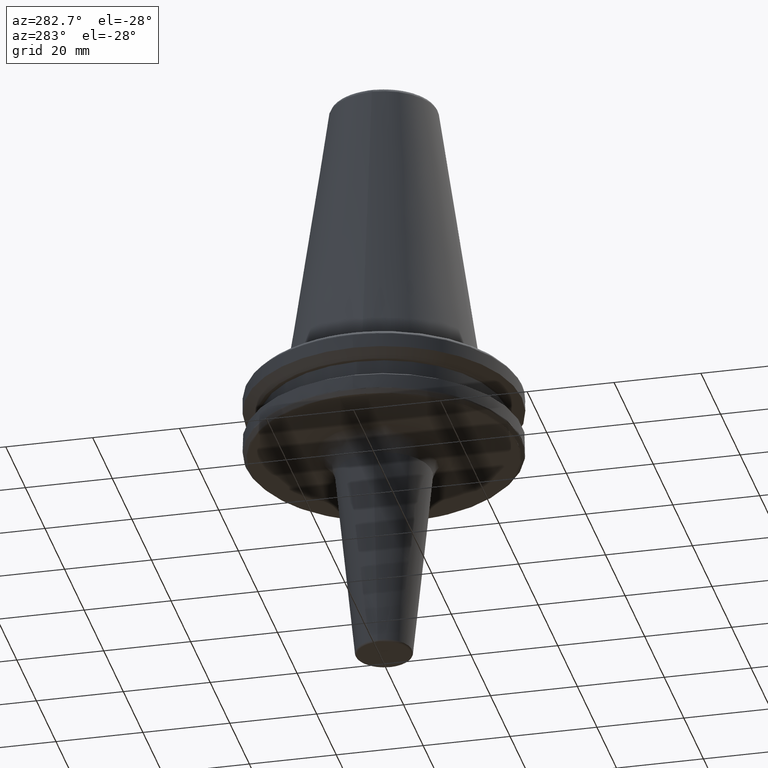
[diagram: clean part render]
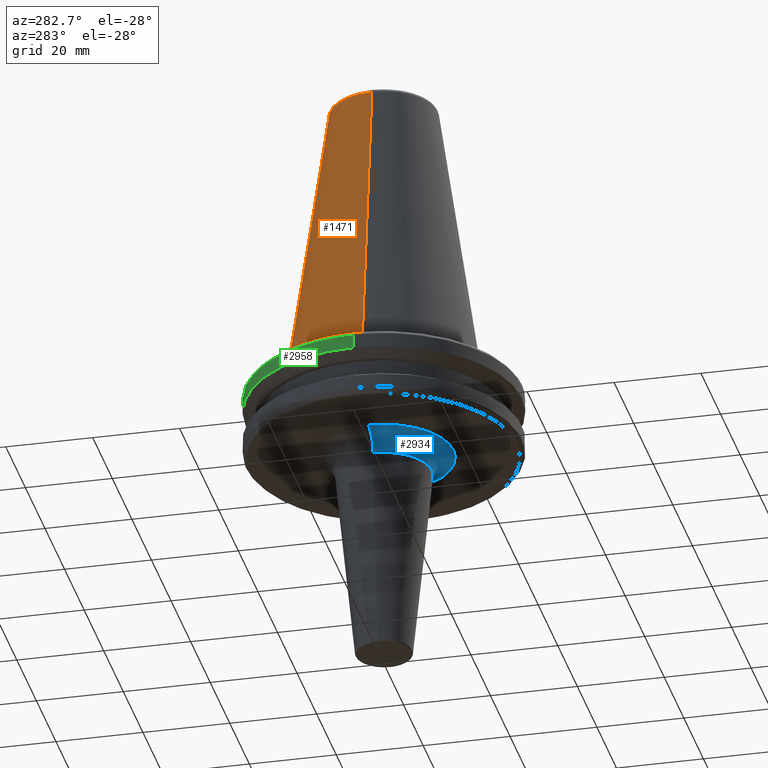
[diagram: same view with three faces highlighted in distinct colors, each labeled with its STEP entity id]
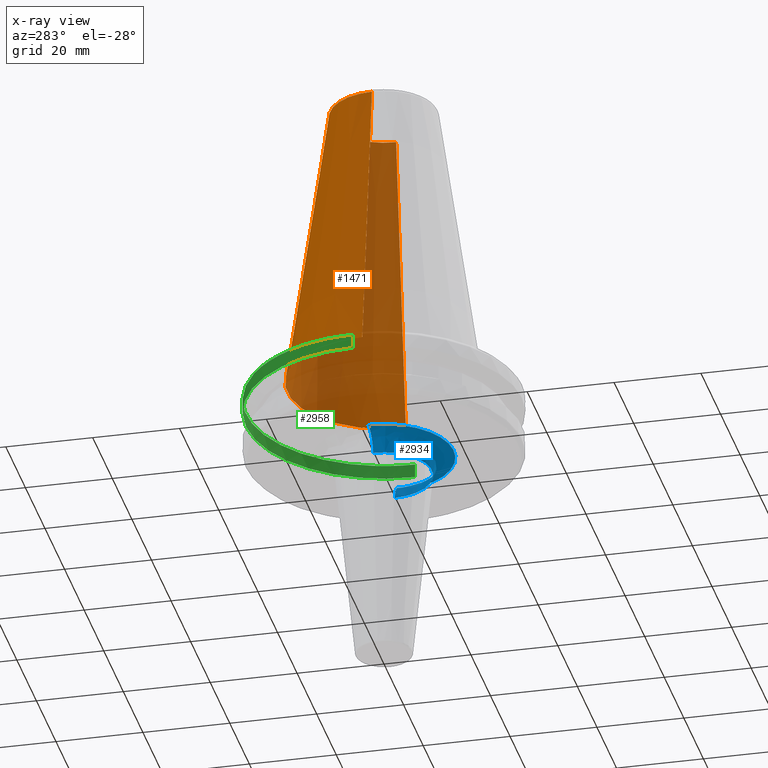
[diagram: x-ray of the same camera — body ghosted, the three highlighted faces saturated]
A machine part, auxiliary view with three faces highlighted in distinct colors.
The next image is the same camera in x-ray (body ghosted, the three faces saturated) — at least one of them is partly hidden behind the body in this view.
Their STEP definitions:

[orange] entity #1471 — the highlighted conical surface has half-angle 8.297 deg.
#61 = CARTESIAN_POINT ( 'NONE',  ( 22.22500000000000500, 0.0000000000000000000, 0.0000000000000000000 ) ) ;
#160 = DIRECTION ( 'NONE',  ( -1.000000000000000000, 0.0000000000000000000, 6.244223985518314900E-016 ) ) ;
#173 = DIRECTION ( 'NONE',  ( -0.0000000000000000000, -0.0000000000000000000, 1.000000000000000000 ) ) ;
#266 = EDGE_CURVE ( 'NONE', #2598, #1013, #1277, .T. ) ;
#330 = DIRECTION ( 'NONE',  ( 0.0000000000000000000, 0.0000000000000000000, -1.000000000000000000 ) ) ;
#392 = FACE_OUTER_BOUND ( 'NONE', #2591, .T. ) ;
#398 = VERTEX_POINT ( 'NONE', #1950 ) ;
#409 = AXIS2_PLACEMENT_3D ( 'NONE', #1020, #173, #160 ) ;
#629 = CARTESIAN_POINT ( 'NONE',  ( -22.22500000000000100, 0.0000000000000000000, 0.0000000000000000000 ) ) ;
#668 = EDGE_CURVE ( 'NONE', #398, #2956, #803, .T. ) ;
#675 = CARTESIAN_POINT ( 'NONE',  ( 0.0000000000000000000, 0.0000000000000000000, 67.54430822726729400 ) ) ;
#692 = CARTESIAN_POINT ( 'NONE',  ( 22.22500000000000100, 2.721777511104992800E-015, 0.0000000000000000000 ) ) ;
#803 = LINE ( 'NONE', #629, #2384 ) ;
#959 = DIRECTION ( 'NONE',  ( -1.000000000000000000, 0.0000000000000000000, 0.0000000000000000000 ) ) ;
#1011 = CIRCLE ( 'NONE', #409, 22.22500000000000100 ) ;
#1013 = VERTEX_POINT ( 'NONE', #61 ) ;
#1020 = CARTESIAN_POINT ( 'NONE',  ( 0.0000000000000000000, 0.0000000000000000000, 0.0000000000000000000 ) ) ;
#1261 = DIRECTION ( 'NONE',  ( 0.1443082272673070500, 1.767266086135363700E-017, -0.9895327864921743500 ) ) ;
#1264 = CARTESIAN_POINT ( 'NONE',  ( 12.37469537611110800, 2.118620309691396900E-015, 67.54430822726729400 ) ) ;
#1277 = LINE ( 'NONE', #692, #2064 ) ;
#1461 = CIRCLE ( 'NONE', #1707, 12.37469537611110800 ) ;
#1471 = ADVANCED_FACE ( 'NONE', ( #392 ), #2439, .T. ) ;
#1524 = EDGE_CURVE ( 'NONE', #1013, #2956, #1011, .T. ) ;
#1528 = ORIENTED_EDGE ( 'NONE', *, *, #668, .F. ) ;
#1707 = AXIS2_PLACEMENT_3D ( 'NONE', #675, #2284, #959 ) ;
#1865 = DIRECTION ( 'NONE',  ( -0.1443082272673070500, 0.0000000000000000000, -0.9895327864921743500 ) ) ;
#1938 = ORIENTED_EDGE ( 'NONE', *, *, #2431, .T. ) ;
#1950 = CARTESIAN_POINT ( 'NONE',  ( -12.37469537611110800, 0.0000000000000000000, 67.54430822726729400 ) ) ;
#2064 = VECTOR ( 'NONE', #1261, 1000.000000000000000 ) ;
#2284 = DIRECTION ( 'NONE',  ( 0.0000000000000000000, 0.0000000000000000000, -1.000000000000000000 ) ) ;
#2338 = ORIENTED_EDGE ( 'NONE', *, *, #266, .T. ) ;
#2384 = VECTOR ( 'NONE', #1865, 1000.000000000000000 ) ;
#2389 = DIRECTION ( 'NONE',  ( -1.000000000000000000, 0.0000000000000000000, 0.0000000000000000000 ) ) ;
#2410 = CARTESIAN_POINT ( 'NONE',  ( 0.0000000000000000000, 0.0000000000000000000, 0.0000000000000000000 ) ) ;
#2431 = EDGE_CURVE ( 'NONE', #398, #2598, #1461, .T. ) ;
#2439 = CONICAL_SURFACE ( 'NONE', #2743, 22.22500000000000100, 0.1448138465474190500 ) ;
#2591 = EDGE_LOOP ( 'NONE', ( #1938, #2338, #2853, #1528 ) ) ;
#2598 = VERTEX_POINT ( 'NONE', #1264 ) ;
#2743 = AXIS2_PLACEMENT_3D ( 'NONE', #2410, #330, #2389 ) ;
#2761 = CARTESIAN_POINT ( 'NONE',  ( -22.22500000000000500, 2.721777511104993200E-015, 0.0000000000000000000 ) ) ;
#2853 = ORIENTED_EDGE ( 'NONE', *, *, #1524, .T. ) ;
#2956 = VERTEX_POINT ( 'NONE', #2761 ) ;

[blue] entity #2934 — the highlighted face is a freeform B-spline surface patch.
#2 = CARTESIAN_POINT ( 'NONE',  ( 15.93576099959557300, -1.952323877414881200, -19.10000000000000500 ) ) ;
#9 = CARTESIAN_POINT ( 'NONE',  ( -5.415644888843526200, -15.09105277167283700, -19.10000000000000500 ) ) ;
#13 = CARTESIAN_POINT ( 'NONE',  ( -5.928885450392940900, -14.88784638462704500, -19.10000000000000500 ) ) ;
#35 = CARTESIAN_POINT ( 'NONE',  ( -5.961603683801485000, -14.87477819932391500, -19.09999999999999800 ) ) ;
#105 = AXIS2_PLACEMENT_3D ( 'NONE', #1554, #1251, #1521 ) ;
#114 = CARTESIAN_POINT ( 'NONE',  ( 16.02493781056044900, -0.9803416778400641000, -19.10000000000000900 ) ) ;
#137 = CARTESIAN_POINT ( 'NONE',  ( 14.72001546843940600, -6.336637313933054300, -19.10000000000000900 ) ) ;
#144 = CARTESIAN_POINT ( 'NONE',  ( 14.52963988049700500, -6.769049517768485700, -19.10000000000001200 ) ) ;
#149 = CARTESIAN_POINT ( 'NONE',  ( 14.11711464000294900, -7.617283082522484400, -19.10000000000000500 ) ) ;
#168 = EDGE_LOOP ( 'NONE', ( #1087, #2214, #285, #508 ) ) ;
#179 = CARTESIAN_POINT ( 'NONE',  ( 8.541319097886304900, -13.55910936823000600, -19.10000000000000500 ) ) ;
#183 = CIRCLE ( 'NONE', #1462, 5.000000000000004400 ) ;
#188 = CARTESIAN_POINT ( 'NONE',  ( 8.369532604454443400, -13.66684814283054400, -19.10000000000000500 ) ) ;
#199 = CARTESIAN_POINT ( 'NONE',  ( 7.964600987714105100, -13.91026865560205500, -19.10000000000000500 ) ) ;
#208 = CARTESIAN_POINT ( 'NONE',  ( 11.31866075088535000, -22.63732150177071000, -20.91339249113892500 ) ) ;
#276 = CARTESIAN_POINT ( 'NONE',  ( -8.825640178402673900, -13.37576967291203200, -19.10000000000000500 ) ) ;
#280 = CARTESIAN_POINT ( 'NONE',  ( -8.884500454615594100, -13.33675647000479700, -19.10000000000000500 ) ) ;
#285 = ORIENTED_EDGE ( 'NONE', *, *, #1383, .T. ) ;
#290 = CARTESIAN_POINT ( 'NONE',  ( -8.999153413804311400, -13.25967809541067800, -19.10000000000000100 ) ) ;
#300 = CARTESIAN_POINT ( 'NONE',  ( -16.02493781056044500, 1.962488879623824100E-015, -19.10000000000000500 ) ) ;
#341 = CARTESIAN_POINT ( 'NONE',  ( -13.45062270834611900, -8.711147148068596000, -19.10000000000000500 ) ) ;
#356 = CARTESIAN_POINT ( 'NONE',  ( -13.48652447456387900, -8.655453287277621800, -19.10000000000000900 ) ) ;
#364 = CARTESIAN_POINT ( 'NONE',  ( -13.55910936823106800, -8.541319097883596000, -19.10000000000000100 ) ) ;
#367 = CARTESIAN_POINT ( 'NONE',  ( -0.9798108771223921200, -16.02490538420793000, -19.10000000000000900 ) ) ;
#373 = CARTESIAN_POINT ( 'NONE',  ( -1.952499199274899500, -15.93572854987427700, -19.10000000000001200 ) ) ;
#377 = CARTESIAN_POINT ( 'NONE',  ( -2.946054329957172400, -15.75183484103431800, -19.10000000000000100 ) ) ;
#390 = CARTESIAN_POINT ( 'NONE',  ( -15.21348071713016400, -5.046758331096120800, -19.10000000000000900 ) ) ;
#394 = CARTESIAN_POINT ( 'NONE',  ( -15.48479810381051200, -4.182800675841758900, -19.10000000000000500 ) ) ;
#400 = CARTESIAN_POINT ( 'NONE',  ( -15.66288834090234500, -3.426809769191382100, -19.09999999999999800 ) ) ;
#416 = CARTESIAN_POINT ( 'NONE',  ( -14.94716444030868800, -5.777714104507485800, -19.10000000000000100 ) ) ;
#420 = CARTESIAN_POINT ( 'NONE',  ( -14.98219154562952800, -5.686837688107878800, -19.10000000000000500 ) ) ;
#426 = CARTESIAN_POINT ( 'NONE',  ( -15.06193566293834300, -5.474229224763867300, -19.10000000000000900 ) ) ;
#451 = VERTEX_POINT ( 'NONE', #1840 ) ;
#496 = CARTESIAN_POINT ( 'NONE',  ( -13.32243689882075800, 1.631527970498343200E-015, -19.10000000000000500 ) ) ;
#508 = ORIENTED_EDGE ( 'NONE', *, *, #1327, .F. ) ;
#535 = CARTESIAN_POINT ( 'NONE',  ( -3.361706707446378700, -15.66933341055935200, -19.10000000000000500 ) ) ;
#542 = CARTESIAN_POINT ( 'NONE',  ( -3.804387961371659400, -15.57068978088166700, -19.10000000000000500 ) ) ;
#553 = CARTESIAN_POINT ( 'NONE',  ( -4.680513904832047000, -15.34169353381260200, -19.10000000000000500 ) ) ;
#561 = CARTESIAN_POINT ( 'NONE',  ( 16.02493781056044500, 0.0000000000000000000, -19.10000000000000500 ) ) ;
#566 = CARTESIAN_POINT ( 'NONE',  ( -2.979819042680885000, -15.74548598627560900, -19.10000000000000100 ) ) ;
#575 = CARTESIAN_POINT ( 'NONE',  ( -3.043609017312483500, -15.73328147892366000, -19.10000000000000500 ) ) ;
#585 = CARTESIAN_POINT ( 'NONE',  ( -14.70054539880678500, -6.402048334111110100, -19.10000000000000100 ) ) ;
#600 = CARTESIAN_POINT ( 'NONE',  ( -3.139211509934968000, -15.71469160193399800, -19.10000000000000900 ) ) ;
#601 = VERTEX_POINT ( 'NONE', #2415 ) ;
#605 = VERTEX_POINT ( 'NONE', #1674 ) ;
#630 = CARTESIAN_POINT ( 'NONE',  ( -6.769049517768485700, -14.52963988049699800, -19.10000000000000500 ) ) ;
#634 = CARTESIAN_POINT ( 'NONE',  ( -7.617283082522479100, -14.11711464000295500, -19.10000000000000900 ) ) ;
#643 = CARTESIAN_POINT ( 'NONE',  ( -8.315898978739827600, -13.70905175167796000, -19.10000000000000500 ) ) ;
#645 = CIRCLE ( 'NONE', #105, 5.000000000000004400 ) ;
#653 = CARTESIAN_POINT ( 'NONE',  ( -6.024364405951600600, -14.84947300013031700, -19.10000000000000500 ) ) ;
#660 = CARTESIAN_POINT ( 'NONE',  ( -6.118357356650728100, -14.81123150433447200, -19.10000000000000900 ) ) ;
#666 = CARTESIAN_POINT ( 'NONE',  ( -6.336637313933057000, -14.72001546843941900, -19.10000000000000900 ) ) ;
#689 = CARTESIAN_POINT ( 'NONE',  ( -9.170287624489535700, -13.14302670391772100, -19.10000000000000500 ) ) ;
#697 = CARTESIAN_POINT ( 'NONE',  ( -9.563684186070119600, -12.86360331655503800, -19.10000000000000100 ) ) ;
#702 = CARTESIAN_POINT ( 'NONE',  ( -10.32681092249150700, -12.27580931297989900, -19.10000000000000100 ) ) ;
#713 = CARTESIAN_POINT ( 'NONE',  ( -10.94034860501307100, -11.72236206045871800, -19.10000000000000500 ) ) ;
#725 = CARTESIAN_POINT ( 'NONE',  ( -12.11332937179384900, -10.54930246090255300, -19.10000000000000500 ) ) ;
#743 = CARTESIAN_POINT ( 'NONE',  ( -12.80765392141347400, -9.694684175495856600, -19.10000000000000100 ) ) ;
#779 = CARTESIAN_POINT ( 'NONE',  ( 13.32243689882075100, -26.64487379764151200, -19.10000000000000500 ) ) ;
#1038 = CARTESIAN_POINT ( 'NONE',  ( -16.02493781056044500, -0.4899930686905121200, -19.10000000000000500 ) ) ;
#1062 = CARTESIAN_POINT ( 'NONE',  ( -16.02493781056044500, 1.962488879623824100E-015, -19.10000000000000500 ) ) ;
#1087 = ORIENTED_EDGE ( 'NONE', *, *, #1221, .F. ) ;
#1088 = DIRECTION ( 'NONE',  ( 0.0000000000000000000, 1.000000000000000000, 0.0000000000000000000 ) ) ;
#1103 = CARTESIAN_POINT ( 'NONE',  ( 16.02493781056044500, 0.0000000000000000000, -24.10000000000000900 ) ) ;
#1114 = CARTESIAN_POINT ( 'NONE',  ( 5.474229224757906700, -15.06193566294069600, -19.10000000000000900 ) ) ;
#1158 = CARTESIAN_POINT ( 'NONE',  ( 5.046758331085897000, -15.21348071713419300, -19.10000000000000100 ) ) ;
#1168 = CARTESIAN_POINT ( 'NONE',  ( 4.182800675828128900, -15.48479810381589400, -19.10000000000000900 ) ) ;
#1179 = CARTESIAN_POINT ( 'NONE',  ( 3.426809769183591500, -15.66288834090541500, -19.10000000000000500 ) ) ;
#1199 = CARTESIAN_POINT ( 'NONE',  ( 2.884017650570669800, -15.76331481746335500, -19.10000000000000500 ) ) ;
#1205 = CARTESIAN_POINT ( 'NONE',  ( 2.855679358404753700, -15.76846938728765400, -19.10000000000000500 ) ) ;
#1221 = EDGE_CURVE ( 'NONE', #601, #451, #645, .T. ) ;
#1241 = CARTESIAN_POINT ( 'NONE',  ( 16.02493781056044500, 0.0000000000000000000, -19.10000000000000500 ) ) ;
#1251 = DIRECTION ( 'NONE',  ( -1.224646799147353200E-016, -1.000000000000000000, 0.0000000000000000000 ) ) ;
#1293 = CARTESIAN_POINT ( 'NONE',  ( -11.04975185951036000, -22.09950371902071000, -23.60248140489638400 ) ) ;
#1306 = CARTESIAN_POINT ( 'NONE',  ( 16.02493781056043800, -32.04987562112088300, -19.10000000000000900 ) ) ;
#1327 = EDGE_CURVE ( 'NONE', #451, #2524, #2729, .T. ) ;
#1383 = EDGE_CURVE ( 'NONE', #605, #2524, #183, .T. ) ;
#1446 = CARTESIAN_POINT ( 'NONE',  ( 15.71469160193399100, -3.139211509934966700, -19.10000000000000500 ) ) ;
#1462 = AXIS2_PLACEMENT_3D ( 'NONE', #1103, #1088, #1870 ) ;
#1469 = CARTESIAN_POINT ( 'NONE',  ( 15.66933341055935400, -3.361706707446379100, -19.10000000000000500 ) ) ;
#1477 = CARTESIAN_POINT ( 'NONE',  ( 15.57068978088166300, -3.804387961371660700, -19.10000000000000500 ) ) ;
#1486 = CARTESIAN_POINT ( 'NONE',  ( 15.34169353381259300, -4.680513904832058500, -19.10000000000000100 ) ) ;
#1509 = CARTESIAN_POINT ( 'NONE',  ( 11.04975185951035700, -2.706408649224374600E-015, -23.60248140489638400 ) ) ;
#1511 = CARTESIAN_POINT ( 'NONE',  ( 15.09105277167283000, -5.415644888843528900, -19.10000000000000500 ) ) ;
#1521 = DIRECTION ( 'NONE',  ( -1.000000000000000000, 1.224646799147353500E-016, 0.0000000000000000000 ) ) ;
#1523 = CARTESIAN_POINT ( 'NONE',  ( 14.88784638462704500, -5.928885450392941800, -19.10000000000000500 ) ) ;
#1554 = CARTESIAN_POINT ( 'NONE',  ( -16.02493781056044500, 1.962488879623824100E-015, -24.10000000000000900 ) ) ;
#1567 = CARTESIAN_POINT ( 'NONE',  ( -14.91225309543118300, -5.867235235063707100, -19.10000000000000500 ) ) ;
#1573 = CARTESIAN_POINT ( 'NONE',  ( 12.27580931298578400, -10.32681092248251000, -19.10000000000000500 ) ) ;
#1577 = CARTESIAN_POINT ( 'NONE',  ( 11.72236206046207700, -10.94034860500792700, -19.10000000000000100 ) ) ;
#1582 = CARTESIAN_POINT ( 'NONE',  ( 10.54930246089581800, -12.11332937180413600, -19.10000000000000100 ) ) ;
#1588 = AXIS2_PLACEMENT_3D ( 'NONE', #2526, #2249, #2780 ) ;
#1592 = CARTESIAN_POINT ( 'NONE',  ( 13.25967809541223000, -8.999153413801941800, -19.10000000000000900 ) ) ;
#1594 = CARTESIAN_POINT ( 'NONE',  ( 13.14302670392029000, -9.170287624485599300, -19.10000000000000500 ) ) ;
#1601 = CARTESIAN_POINT ( 'NONE',  ( 12.86360331655945900, -9.563684186063371200, -19.10000000000000500 ) ) ;
#1616 = CARTESIAN_POINT ( 'NONE',  ( -14.92362391341799800, -5.838244716226753900, -19.10000000000000500 ) ) ;
#1674 = CARTESIAN_POINT ( 'NONE',  ( 11.04975185949665200, 0.0000000000000000000, -23.60248140489502000 ) ) ;
#1696 = EDGE_CURVE ( 'NONE', #605, #601, #2555, .T. ) ;
#1722 = CARTESIAN_POINT ( 'NONE',  ( -11.31866075088535700, -22.63732150177070700, -20.91339249113892500 ) ) ;
#1725 = CARTESIAN_POINT ( 'NONE',  ( 2.070599743737037400, -15.89398064924963400, -19.10000000000000900 ) ) ;
#1739 = CARTESIAN_POINT ( 'NONE',  ( 1.221827842322624800, -15.99152487950707200, -19.10000000000000500 ) ) ;
#1750 = CARTESIAN_POINT ( 'NONE',  ( 0.4899054385611919500, -16.02495402373670800, -19.10000000000000900 ) ) ;
#1758 = CARTESIAN_POINT ( 'NONE',  ( 2.795389182506383500, -15.77927004172202400, -19.10000000000000100 ) ) ;
#1761 = CARTESIAN_POINT ( 'NONE',  ( 2.704930983080073400, -15.79520966818612500, -19.10000000000000500 ) ) ;
#1780 = CARTESIAN_POINT ( 'NONE',  ( 2.493701302034088600, -15.83057264362352400, -19.10000000000000500 ) ) ;
#1840 = CARTESIAN_POINT ( 'NONE',  ( -16.02493781056044500, 1.962488879623824100E-015, -19.10000000000000500 ) ) ;
#1870 = DIRECTION ( 'NONE',  ( 1.000000000000000000, 0.0000000000000000000, 0.0000000000000000000 ) ) ;
#1898 = CARTESIAN_POINT ( 'NONE',  ( -15.99149650644862000, -1.221981195048944800, -19.10000000000000900 ) ) ;
#1946 = CARTESIAN_POINT ( 'NONE',  ( 11.31866075088535500, -2.772272331841305800E-015, -20.91339249113892200 ) ) ;
#2005 = CARTESIAN_POINT ( 'NONE',  ( 15.75183382698053000, -2.946059808765296100, -19.10000000000000100 ) ) ;
#2013 = CARTESIAN_POINT ( 'NONE',  ( 15.74548598627560600, -2.979819042680883300, -19.09999999999999800 ) ) ;
#2030 = CARTESIAN_POINT ( 'NONE',  ( 15.73328147892365300, -3.043609017312481700, -19.10000000000000500 ) ) ;
#2063 = CARTESIAN_POINT ( 'NONE',  ( 14.87477819932392400, -5.961603683801482300, -19.09999999999999800 ) ) ;
#2073 = CARTESIAN_POINT ( 'NONE',  ( 14.84947300013032200, -6.024364405951598800, -19.10000000000000100 ) ) ;
#2081 = CARTESIAN_POINT ( 'NONE',  ( 14.81123150433447200, -6.118357356650726300, -19.10000000000000500 ) ) ;
#2125 = CARTESIAN_POINT ( 'NONE',  ( 9.694684175515112300, -12.80765392139777600, -19.10000000000000500 ) ) ;
#2128 = CARTESIAN_POINT ( 'NONE',  ( 8.711147148067391700, -13.45062270834710100, -19.10000000000000500 ) ) ;
#2149 = CARTESIAN_POINT ( 'NONE',  ( 8.655453287279039300, -13.48652447456331400, -19.10000000000000500 ) ) ;
#2154 = CARTESIAN_POINT ( 'NONE',  ( 13.70905175167796300, -8.315898978739834700, -19.10000000000000900 ) ) ;
#2161 = CARTESIAN_POINT ( 'NONE',  ( -13.32243689882076200, -26.64487379764150500, -19.10000000000000500 ) ) ;
#2163 = CARTESIAN_POINT ( 'NONE',  ( 13.37576967291203200, -8.825640178402673900, -19.10000000000000900 ) ) ;
#2214 = ORIENTED_EDGE ( 'NONE', *, *, #1696, .F. ) ;
#2249 = DIRECTION ( 'NONE',  ( -0.0000000000000000000, -0.0000000000000000000, -1.000000000000000000 ) ) ;
#2274 = FACE_OUTER_BOUND ( 'NONE', #168, .T. ) ;
#2346 = CARTESIAN_POINT ( 'NONE',  ( -11.04975185951035700, 1.353204324612187300E-015, -23.60248140489638400 ) ) ;
#2354 = CARTESIAN_POINT ( 'NONE',  ( 13.32243689882075800, -3.263055940996686500E-015, -19.10000000000000500 ) ) ;
#2400 = CARTESIAN_POINT ( 'NONE',  ( -13.66684814283232400, -8.369532604449943800, -19.10000000000000500 ) ) ;
#2415 = CARTESIAN_POINT ( 'NONE',  ( -11.04975185949665200, 1.353204324610509000E-015, -23.60248140489502000 ) ) ;
#2423 = CARTESIAN_POINT ( 'NONE',  ( -15.77926614675976100, -2.795410234275733000, -19.10000000000000900 ) ) ;
#2496 = CARTESIAN_POINT ( 'NONE',  ( 6.402048334116980900, -14.70054539880446700, -19.10000000000000500 ) ) ;
#2524 = VERTEX_POINT ( 'NONE', #1241 ) ;
#2526 = CARTESIAN_POINT ( 'NONE',  ( 0.0000000000000000000, 0.0000000000000000000, -23.60248140489502000 ) ) ;
#2546 = CARTESIAN_POINT ( 'NONE',  ( 7.138351892636198800, -14.36522983595937400, -19.10000000000000500 ) ) ;
#2553 = CARTESIAN_POINT ( 'NONE',  ( -16.02493781056044900, -32.04987562112088300, -19.10000000000000900 ) ) ;
#2555 = CIRCLE ( 'NONE', #1588, 11.04975185951049200 ) ;
#2557 = CARTESIAN_POINT ( 'NONE',  ( 5.838244716225800900, -14.92362391341837500, -19.10000000000000900 ) ) ;
#2562 = CARTESIAN_POINT ( 'NONE',  ( 5.777714104505617100, -14.94716444030942200, -19.10000000000000100 ) ) ;
#2571 = CARTESIAN_POINT ( 'NONE',  ( -15.89395936945579500, -2.070714758281772600, -19.10000000000000900 ) ) ;
#2576 = CARTESIAN_POINT ( 'NONE',  ( -15.83056023041045200, -2.493768393851850000, -19.09999999999999800 ) ) ;
#2603 = CARTESIAN_POINT ( 'NONE',  ( 13.33675647000560500, -8.884500454614345300, -19.10000000000000500 ) ) ;
#2680 = CARTESIAN_POINT ( 'NONE',  ( -13.91026865560509400, -7.964600987706401900, -19.10000000000000500 ) ) ;
#2712 = CARTESIAN_POINT ( 'NONE',  ( 5.686837688104686700, -14.98219154563077800, -19.09999999999999800 ) ) ;
#2729 = B_SPLINE_CURVE_WITH_KNOTS ( 'NONE', 3,
 ( #300, #1038, #1898, #2571, #2576, #2969, #2423, #2799, #2788, #400, #394, #390, #426, #420, #416, #1616, #1567, #585, #2774, #2680, #2400, #364, #356, #341, #743, #725, #713, #702, #697, #689, #290, #280, #276, #643, #634, #630, #666, #660, #653, #35, #13, #9, #553, #542, #535, #600, #575, #566, #377, #373, #367, #1750, #1739, #1725, #1780, #1761, #1758, #1205, #1199, #1179, #1168, #1158, #1114, #2712, #2562, #2557, #2795, #2496, #2546, #199, #188, #179, #2149, #2128, #2125, #1582, #1577, #1573, #1601, #1594, #1592, #2603, #2163, #2154, #149, #144, #137, #2081, #2073, #2063, #1523, #1511, #1486, #1477, #1469, #1446, #2030, #2013, #2005, #2, #114, #561 ),
 .UNSPECIFIED., .F., .F.,
 ( 4, 1, 1, 1, 1, 2, 2, 1, 1, 1, 1, 2, 2, 1, 1, 1, 2, 2, 2, 1, 1, 1, 2, 2, 1, 1, 1, 1, 2, 2, 1, 1, 1, 1, 2, 2, 2, 1, 1, 1, 1, 2, 2, 1, 1, 1, 1, 2, 2, 1, 1, 1, 2, 2, 2, 1, 1, 1, 2, 2, 1, 1, 1, 1, 2, 2, 1, 1, 1, 1, 2, 2, 4 ),
 ( 0.0000000000000000000, 0.03124999999999950700, 0.04687499999999927100, 0.05468749999999916000, 0.05859374999999911900, 0.06054687499999909800, 0.06249999999999908400, 0.09374999999999873700, 0.1093749999999985800, 0.1171874999999985000, 0.1210937499999984700, 0.1230468749999984700, 0.1249999999999984700, 0.1562499999999977500, 0.1718749999999973600, 0.1796874999999971400, 0.1835937499999970000, 0.1874999999999968600, 0.2499999999999948400, 0.2812499999999938400, 0.2968749999999932800, 0.3046874999999929500, 0.3085937499999927800, 0.3124999999999926200, 0.3437499999999914000, 0.3593749999999908400, 0.3671874999999905600, 0.3710937499999904000, 0.3730468749999902900, 0.3749999999999902300, 0.4062499999999892900, 0.4218749999999888400, 0.4296874999999886200, 0.4335937499999885100, 0.4355468749999884500, 0.4374999999999884500, 0.4999999999999877300, 0.5312499999999874500, 0.5468749999999872300, 0.5546874999999871200, 0.5585937499999871200, 0.5605468749999870100, 0.5624999999999870100, 0.5937499999999871200, 0.6093749999999871200, 0.6171874999999871200, 0.6210937499999872300, 0.6230468749999872300, 0.6249999999999871200, 0.6562499999999874500, 0.6718749999999876800, 0.6796874999999876800, 0.6835937499999877900, 0.6874999999999877900, 0.7499999999999893400, 0.7812499999999901200, 0.7968749999999905600, 0.8046874999999909000, 0.8085937499999910100, 0.8124999999999912300, 0.8437499999999924500, 0.8593749999999930100, 0.8671874999999933400, 0.8710937499999934500, 0.8730468749999935600, 0.8749999999999936700, 0.9062499999999951200, 0.9218749999999958900, 0.9296874999999963400, 0.9335937499999964500, 0.9355468749999965600, 0.9374999999999966700, 1.000000000000000000 ),
 .UNSPECIFIED. ) ;
#2740 = CARTESIAN_POINT ( 'NONE',  ( 11.04975185951035300, -22.09950371902071700, -23.60248140489638400 ) ) ;
#2750 = CARTESIAN_POINT ( 'NONE',  ( 16.02493781056044500, -3.924977759247648100E-015, -19.10000000000000500 ) ) ;
#2771 =( BOUNDED_SURFACE ( )  B_SPLINE_SURFACE ( 3, 3, ( 
 ( #2346, #1293, #2740, #1509 ),
 ( #2939, #1722, #208, #1946 ),
 ( #496, #2161, #779, #2354 ),
 ( #1062, #2553, #1306, #2750 ) ),
 .UNSPECIFIED., .F., .F., .F. ) 
 B_SPLINE_SURFACE_WITH_KNOTS ( ( 4, 4 ),
 ( 4, 4 ),
 ( 0.0000000000000000000, 1.000000000000000000 ),
 ( 0.0000000000000000000, 1.000000000000000000 ),
 .UNSPECIFIED. ) 
 GEOMETRIC_REPRESENTATION_ITEM ( )  RATIONAL_B_SPLINE_SURFACE ( (
 ( 1.000000000000000000, 0.3333333333333334300, 0.3333333333333334300, 1.000000000000000000),
 ( 0.8276350223678573500, 0.2758783407892858600, 0.2758783407892858600, 0.8276350223678573500),
 ( 0.8276350223678573500, 0.2758783407892858600, 0.2758783407892858600, 0.8276350223678573500),
 ( 1.000000000000000000, 0.3333333333333334300, 0.3333333333333334300, 1.000000000000000000) ) ) 
 REPRESENTATION_ITEM ( '' )  SURFACE ( )  );
#2774 = CARTESIAN_POINT ( 'NONE',  ( -14.36522983596343100, -7.138351892625918200, -19.10000000000000500 ) ) ;
#2780 = DIRECTION ( 'NONE',  ( 1.000000000000000000, 0.0000000000000000000, 0.0000000000000000000 ) ) ;
#2788 = CARTESIAN_POINT ( 'NONE',  ( -15.76331481746354500, -2.884017650570182700, -19.10000000000000100 ) ) ;
#2795 = CARTESIAN_POINT ( 'NONE',  ( 5.867235235063344800, -14.91225309543131900, -19.10000000000000500 ) ) ;
#2799 = CARTESIAN_POINT ( 'NONE',  ( -15.76846739230697900, -2.855690141018322000, -19.09999999999999800 ) ) ;
#2934 = ADVANCED_FACE ( 'NONE', ( #2274 ), #2771, .F. ) ;
#2939 = CARTESIAN_POINT ( 'NONE',  ( -11.31866075088535500, 1.386136165920652900E-015, -20.91339249113892200 ) ) ;
#2969 = CARTESIAN_POINT ( 'NONE',  ( -15.79520301825055400, -2.704966925125305900, -19.10000000000000100 ) ) ;

[green] entity #2958 — the highlighted cylindrical surface (partial cylindrical patch) has radius 31.75 mm, axis along (0, 0, 1).
#4 = VERTEX_POINT ( 'NONE', #1369 ) ;
#71 = VERTEX_POINT ( 'NONE', #1285 ) ;
#96 = DIRECTION ( 'NONE',  ( 1.000000000000000000, 0.0000000000000000000, 0.0000000000000000000 ) ) ;
#212 = EDGE_CURVE ( 'NONE', #2717, #2844, #1132, .T. ) ;
#281 = DIRECTION ( 'NONE',  ( -0.0000000000000000000, -0.0000000000000000000, 1.000000000000000000 ) ) ;
#287 = EDGE_CURVE ( 'NONE', #297, #2651, #2283, .T. ) ;
#297 = VERTEX_POINT ( 'NONE', #1153 ) ;
#318 = AXIS2_PLACEMENT_3D ( 'NONE', #867, #857, #2599 ) ;
#365 = CARTESIAN_POINT ( 'NONE',  ( 30.56296919415016300, 8.600431037885712700, -4.365685424949236700 ) ) ;
#477 = ORIENTED_EDGE ( 'NONE', *, *, #1534, .F. ) ;
#639 = ORIENTED_EDGE ( 'NONE', *, *, #1242, .T. ) ;
#678 = CARTESIAN_POINT ( 'NONE',  ( 0.0000000000000000000, 0.0000000000000000000, -4.365685424949236700 ) ) ;
#761 = ORIENTED_EDGE ( 'NONE', *, *, #287, .T. ) ;
#780 = VERTEX_POINT ( 'NONE', #2174 ) ;
#857 = DIRECTION ( 'NONE',  ( -0.0000000000000000000, -0.0000000000000000000, -1.000000000000000000 ) ) ;
#867 = CARTESIAN_POINT ( 'NONE',  ( 0.0000000000000000000, 0.0000000000000000000, -4.365685424949236700 ) ) ;
#966 = DIRECTION ( 'NONE',  ( 1.000000000000000000, 0.0000000000000000000, 0.0000000000000000000 ) ) ;
#997 = DIRECTION ( 'NONE',  ( 0.0000000000000000000, 0.0000000000000000000, 1.000000000000000000 ) ) ;
#1039 = DIRECTION ( 'NONE',  ( 0.0000000000000000000, 0.0000000000000000000, 1.000000000000000000 ) ) ;
#1112 = CARTESIAN_POINT ( 'NONE',  ( 0.0000000000000000000, 0.0000000000000000000, -7.578163357943284800 ) ) ;
#1132 = CIRCLE ( 'NONE', #318, 31.75000000000000000 ) ;
#1153 = CARTESIAN_POINT ( 'NONE',  ( -31.75000000000000000, 3.888253587292846500E-015, -7.578163357943284800 ) ) ;
#1154 = DIRECTION ( 'NONE',  ( -0.0000000000000000000, -0.0000000000000000000, 1.000000000000000000 ) ) ;
#1167 = CIRCLE ( 'NONE', #1774, 31.75000000000000000 ) ;
#1225 = DIRECTION ( 'NONE',  ( -0.0000000000000000000, -0.0000000000000000000, -1.000000000000000000 ) ) ;
#1242 = EDGE_CURVE ( 'NONE', #2793, #4, #1663, .T. ) ;
#1273 = CARTESIAN_POINT ( 'NONE',  ( -31.75000000000000000, 3.888253587292846500E-015, 113.5216080541959500 ) ) ;
#1285 = CARTESIAN_POINT ( 'NONE',  ( 31.75000000000000000, 0.0000000000000000000, -4.365685424949236700 ) ) ;
#1349 = DIRECTION ( 'NONE',  ( 1.000000000000000000, 0.0000000000000000000, 0.0000000000000000000 ) ) ;
#1369 = CARTESIAN_POINT ( 'NONE',  ( -25.80334280669851700, 18.50000000000000000, -4.365685424949236700 ) ) ;
#1399 = CARTESIAN_POINT ( 'NONE',  ( 0.0000000000000000000, 0.0000000000000000000, 113.5216080541959500 ) ) ;
#1410 = ORIENTED_EDGE ( 'NONE', *, *, #2169, .F. ) ;
#1534 = EDGE_CURVE ( 'NONE', #780, #71, #2458, .T. ) ;
#1570 = CARTESIAN_POINT ( 'NONE',  ( 0.0000000000000000000, 0.0000000000000000000, -7.578163357943284800 ) ) ;
#1576 = DIRECTION ( 'NONE',  ( 0.0000000000000000000, 0.0000000000000000000, 1.000000000000000000 ) ) ;
#1613 = DIRECTION ( 'NONE',  ( 1.000000000000000000, 0.0000000000000000000, 0.0000000000000000000 ) ) ;
#1663 = CIRCLE ( 'NONE', #2097, 31.75000000000000000 ) ;
#1671 = AXIS2_PLACEMENT_3D ( 'NONE', #678, #2288, #966 ) ;
#1728 = EDGE_CURVE ( 'NONE', #780, #1995, #2538, .T. ) ;
#1774 = AXIS2_PLACEMENT_3D ( 'NONE', #1783, #281, #2001 ) ;
#1783 = CARTESIAN_POINT ( 'NONE',  ( 0.0000000000000000000, 0.0000000000000000000, -4.365685424949236700 ) ) ;
#1810 = CARTESIAN_POINT ( 'NONE',  ( 0.0000000000000000000, 0.0000000000000000000, -4.365685424949236700 ) ) ;
#1892 = CARTESIAN_POINT ( 'NONE',  ( 3.888253587292846500E-015, 31.75000000000000000, -7.578163357943284800 ) ) ;
#1935 = CIRCLE ( 'NONE', #2494, 31.75000000000000000 ) ;
#1952 = EDGE_CURVE ( 'NONE', #71, #2844, #2402, .T. ) ;
#1984 = CARTESIAN_POINT ( 'NONE',  ( -18.49999999999999600, 25.80334280669851700, -4.365685424949236700 ) ) ;
#1993 = VECTOR ( 'NONE', #997, 1000.000000000000000 ) ;
#1995 = VERTEX_POINT ( 'NONE', #1892 ) ;
#2001 = DIRECTION ( 'NONE',  ( 1.000000000000000000, 0.0000000000000000000, 0.0000000000000000000 ) ) ;
#2097 = AXIS2_PLACEMENT_3D ( 'NONE', #1810, #1225, #96 ) ;
#2105 = CARTESIAN_POINT ( 'NONE',  ( 31.75000000000000000, 0.0000000000000000000, 113.5216080541959500 ) ) ;
#2144 = ORIENTED_EDGE ( 'NONE', *, *, #212, .T. ) ;
#2169 = EDGE_CURVE ( 'NONE', #2717, #4, #1167, .T. ) ;
#2172 = DIRECTION ( 'NONE',  ( 1.000000000000000000, 0.0000000000000000000, 0.0000000000000000000 ) ) ;
#2174 = CARTESIAN_POINT ( 'NONE',  ( 31.75000000000000000, 0.0000000000000000000, -7.578163357943284800 ) ) ;
#2242 = ORIENTED_EDGE ( 'NONE', *, *, #1728, .T. ) ;
#2258 = EDGE_CURVE ( 'NONE', #2793, #2651, #2321, .T. ) ;
#2283 = LINE ( 'NONE', #1273, #1993 ) ;
#2288 = DIRECTION ( 'NONE',  ( -0.0000000000000000000, -0.0000000000000000000, 1.000000000000000000 ) ) ;
#2321 = CIRCLE ( 'NONE', #2325, 31.75000000000000000 ) ;
#2325 = AXIS2_PLACEMENT_3D ( 'NONE', #2426, #1154, #2631 ) ;
#2356 = CARTESIAN_POINT ( 'NONE',  ( -31.75000000000000000, 3.888253587292846500E-015, -4.365685424949236700 ) ) ;
#2393 = AXIS2_PLACEMENT_3D ( 'NONE', #1399, #2827, #2172 ) ;
#2402 = CIRCLE ( 'NONE', #1671, 31.75000000000000000 ) ;
#2422 = AXIS2_PLACEMENT_3D ( 'NONE', #1570, #1576, #1613 ) ;
#2426 = CARTESIAN_POINT ( 'NONE',  ( 0.0000000000000000000, 0.0000000000000000000, -4.365685424949236700 ) ) ;
#2432 = EDGE_LOOP ( 'NONE', ( #2629, #761, #2990, #639, #1410, #2144, #2672, #477, #2242 ) ) ;
#2458 = LINE ( 'NONE', #2105, #2460 ) ;
#2460 = VECTOR ( 'NONE', #1039, 1000.000000000000000 ) ;
#2494 = AXIS2_PLACEMENT_3D ( 'NONE', #1112, #2592, #1349 ) ;
#2500 = CYLINDRICAL_SURFACE ( 'NONE', #2393, 31.75000000000000000 ) ;
#2538 = CIRCLE ( 'NONE', #2422, 31.75000000000000000 ) ;
#2592 = DIRECTION ( 'NONE',  ( 0.0000000000000000000, 0.0000000000000000000, 1.000000000000000000 ) ) ;
#2599 = DIRECTION ( 'NONE',  ( 1.000000000000000000, -1.776356839400250500E-015, 0.0000000000000000000 ) ) ;
#2629 = ORIENTED_EDGE ( 'NONE', *, *, #2697, .T. ) ;
#2631 = DIRECTION ( 'NONE',  ( 1.000000000000000000, 0.0000000000000000000, 0.0000000000000000000 ) ) ;
#2651 = VERTEX_POINT ( 'NONE', #2356 ) ;
#2672 = ORIENTED_EDGE ( 'NONE', *, *, #1952, .F. ) ;
#2697 = EDGE_CURVE ( 'NONE', #1995, #297, #1935, .T. ) ;
#2717 = VERTEX_POINT ( 'NONE', #1984 ) ;
#2793 = VERTEX_POINT ( 'NONE', #3005 ) ;
#2827 = DIRECTION ( 'NONE',  ( 0.0000000000000000000, 0.0000000000000000000, 1.000000000000000000 ) ) ;
#2844 = VERTEX_POINT ( 'NONE', #365 ) ;
#2906 = FACE_OUTER_BOUND ( 'NONE', #2432, .T. ) ;
#2958 = ADVANCED_FACE ( 'NONE', ( #2906 ), #2500, .T. ) ;
#2990 = ORIENTED_EDGE ( 'NONE', *, *, #2258, .F. ) ;
#3005 = CARTESIAN_POINT ( 'NONE',  ( -30.52966748735167000, 8.717907037342303800, -4.365685424949243800 ) ) ;